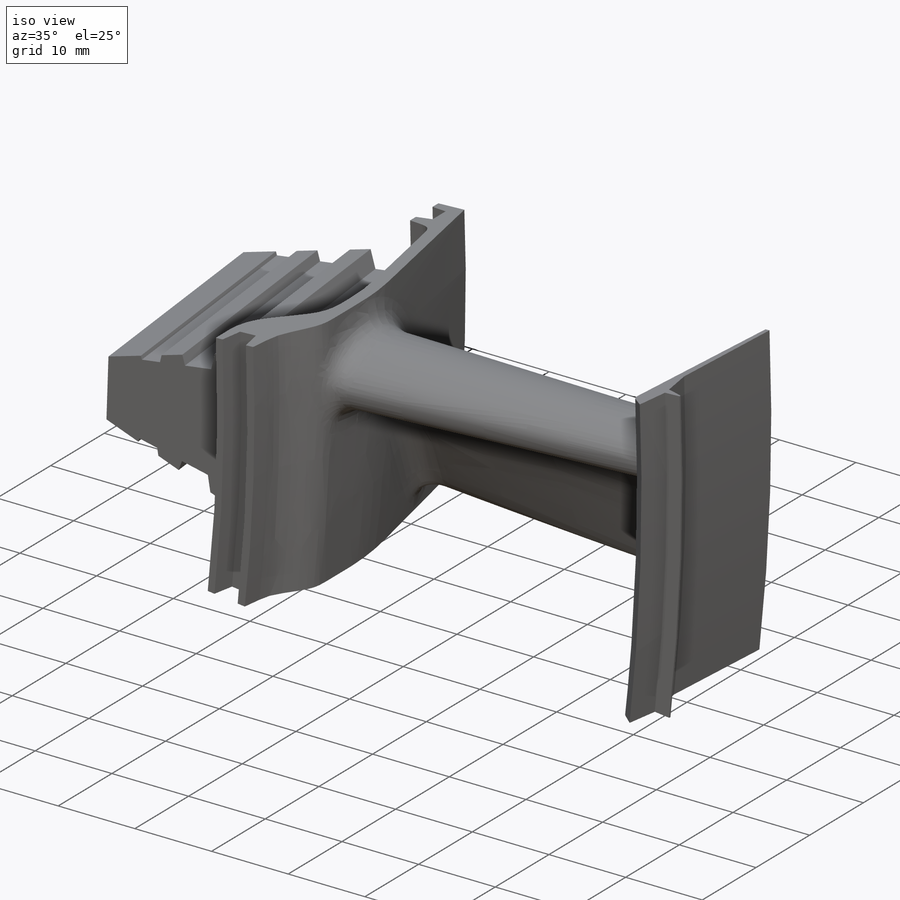
[diagram: iso view]
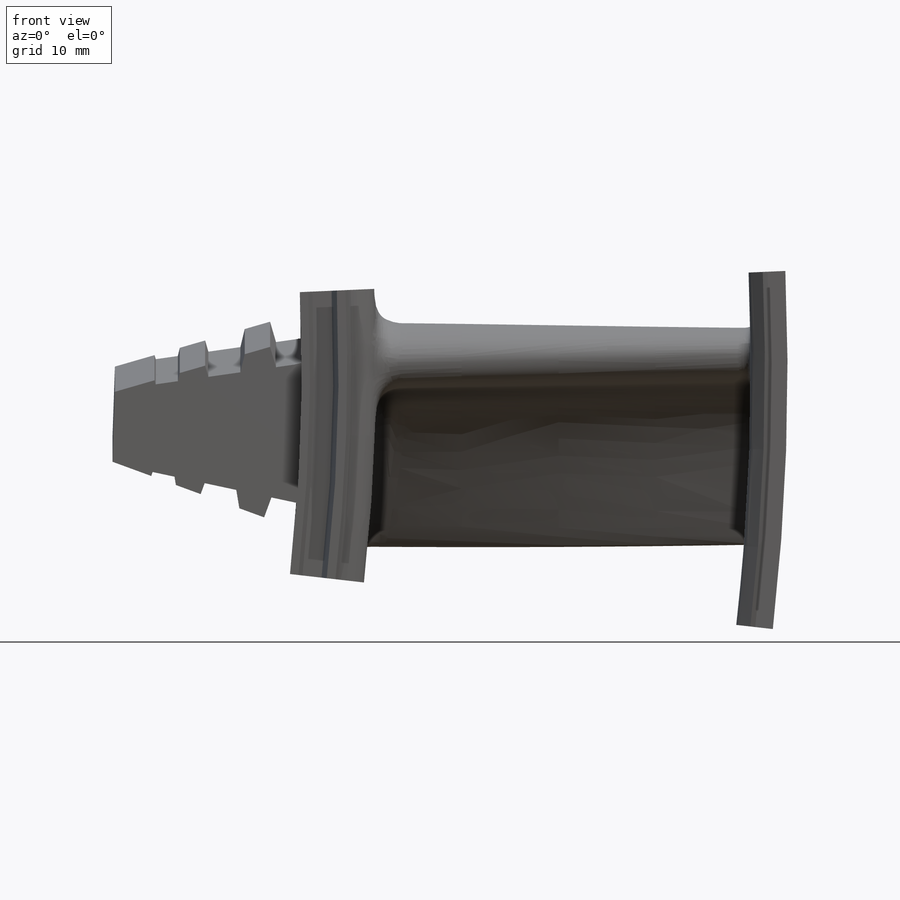
[diagram: front view]
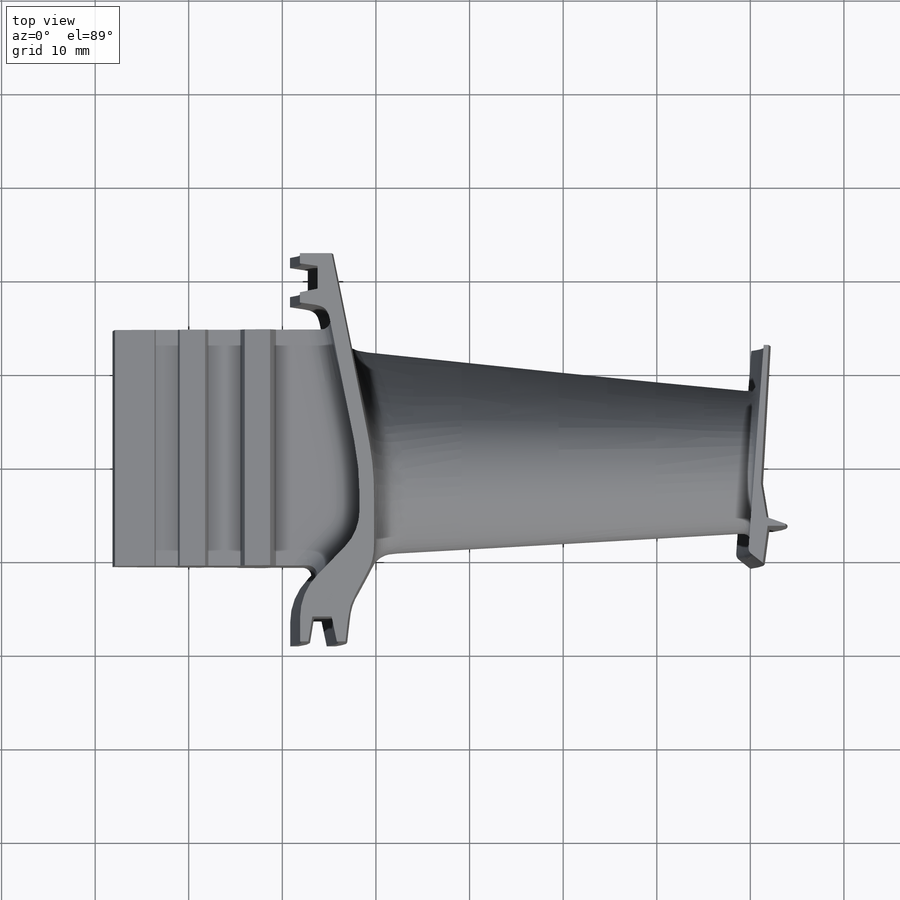
[diagram: top view]
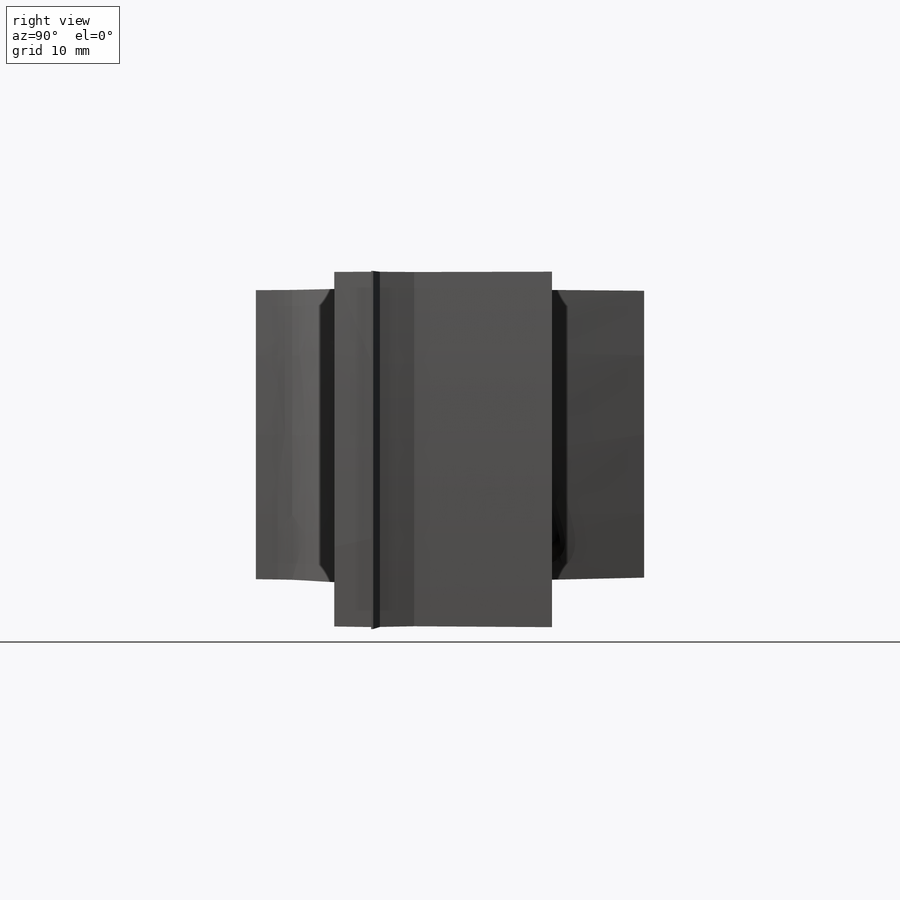
[diagram: right view]
SOLIDWORKS PART (.sldprt)
format: sldprt  version: not decoded by parser v0  size: 1,014,272 bytes
history: native  units: mm
features: sketch x15, fillet x15, plane x3, helix x2, revolve x2, material x1, extrude x1, boolean_combine x1 + 3 further entries (+14 scaffold rows collapsed)
feature tree (57):
  scaffold x14  (default folders/planes/origin — collapsed)
  material  "Material <not specified>"
  "y-axis"
  "z-axis"
  sketch  "Sketch1"  dims[c1.D1=190.0mm c1.D3=200.0mm c2.D1=~10.509191mm c2.D2=50.0mm]
  sketch  "Sketch2"  dims[c1.D1=~22.456644mm c2.D1=54.0deg]
  sketch  "Sketch3"  dims[D1=~10.179501mm]
  helix  "Helix/Spiral1"  Pitch=75mm
  plane  "Plane1"
  sketch  "Sketch6"  dims[D1=1.4605mm]
  plane  "Plane2"
  sketch  "Sketch7"  dims[D1=1.4605mm]
  sketch  "Sketch8"  dims[c1.D1=~28.822006mm c2.D1=~53.450795deg]
  helix  "Helix/Spiral2"  Pitch=75mm
  sketch  "Sketch9"  dims[c1.D1=~22.456644mm c2.D1=54.0deg]
  sketch  "Sketch10"  dims[c1.D1=~22.456644mm c2.D1=54.0deg]
  plane  "Plane3"
  sketch  "Sketch11"  dims[c1.D1=~22.456644mm c2.D1=54.0deg]
  sketch  "Sketch12"  dims[D1=~112.121979mm]
  sketch  "3DSketch1"  dims[D1=0.0mm D2=0.0mm]
  "Axis1"
  sketch  "Sketch14"  dims[c1.D2=~2.803169mm c1.D1=~45.823493mm c2.D2=~20.17017mm c2.D1=47.0mm c3.D2=~1.580676mm c3.D1=~2.711727mm]
  revolve  "Revolve1"  Angle=2.5deg
  sketch  "Sketch15"  dims[D1=~0.711397mm]
  revolve  "Revolve2"  Angle=2.5deg
  sketch  "Sketch16"  dims[D1=~26.831137mm]
  sketch  "Sketch17"  dims[D1=~0.071959mm]
  extrude  "Extrude2"  [1 undecoded]
  boolean_combine  "Combine1"
  fillet  "Fillet2"  Radius=8mm
  fillet  "Fillet3"  Radius=8mm
  fillet  "Fillet4"  Radius=41mm
  fillet  "Fillet5"  Radius=1mm
  fillet  "Fillet6"  Radius=1.25mm
  fillet  "Fillet8"  Radius=41mm
  fillet  "Fillet9"  Radius=3.5mm
  fillet  "Fillet10"  Radius=28.5mm
  fillet  "Fillet11"  Radius=5.5mm
  fillet  "Fillet24"  Radius=6.5mm
  fillet  "Fillet25"  Radius=2mm
  fillet  "Fillet27"  Radius=1mm
  fillet  "Fillet29"  Radius=1mm
  fillet  "Fillet30"  Radius=3mm
  fillet  "Fillet32"  Radius=2mm
decode coverage: 34 of 36 modeling features carry decoded parameters; 3 rows unclassified (native names shown)
note: ~ marks probable driven/reference dimensions
note: 1 parameter value undecoded
note: suppression state not decoded; provenance and decode notes live in map.json
